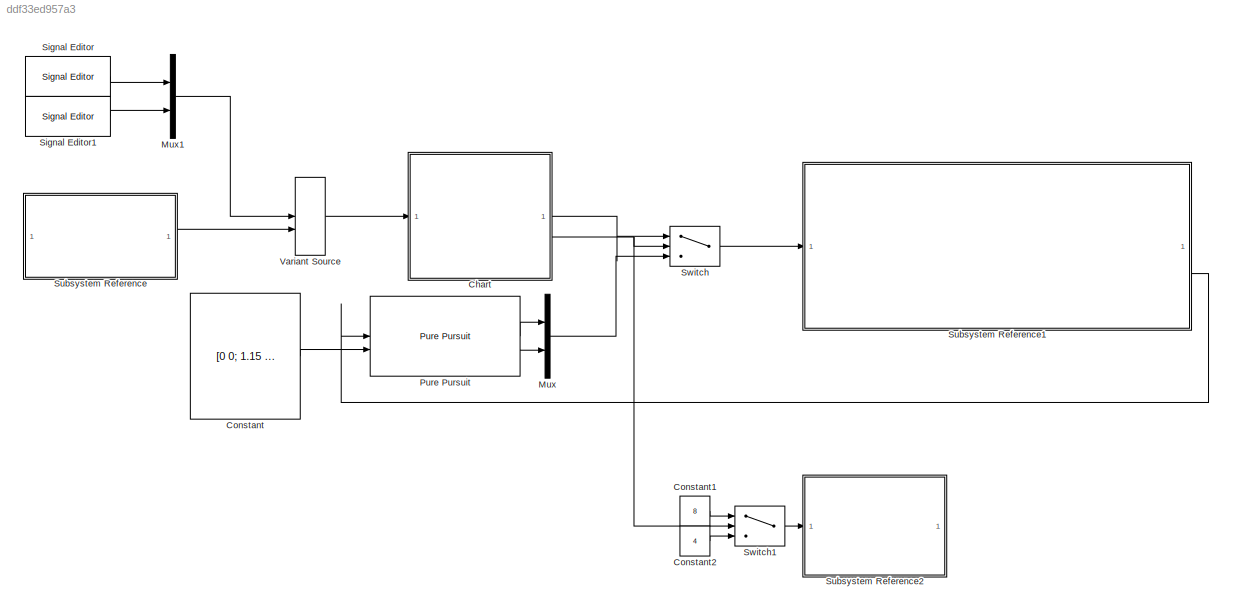
MODEL slx_ddf33ed957a3
KIND model
CONFIG AbsTol = auto
CONFIG EnableMultiTasking = on
CONFIG FixedStep = auto
CONFIG MaxStep = auto
CONFIG MinStep = auto
CONFIG RelTol = 1e-3
CONFIG SampleTimeConstraint = Unconstrained
CONFIG SolverName = FixedStepAuto
CONFIG StartTime = 0.0
CONFIG StopTime = 50
WORKSPACE source: mxarray member
WORKSPACE d = 0.15
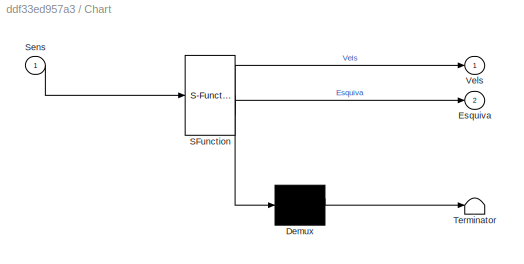
BLOCK [SubSystem] Chart
  ErrorFcn = Stateflow.Translate.translate
  PermitHierarchicalResolution = ExplicitOnly
  SFBlockType = Chart
  TreatAsAtomicUnit = on
BLOCK [Demux] Chart/ Demux 
  Outputs = 1
BLOCK [S-Function] Chart/ SFunction 
  EnableBusSupport = on
  FunctionName = sf_sfun
  PortCounts = [1 3]
  SFcnIsStateOwnerBlock = off
  SFunctionDeploymentMode = off
  Tag = Stateflow S-Function 3
BLOCK [Terminator] Chart/ Terminator 
BLOCK [Outport] Chart/Esquiva
  Port = 2
BLOCK [Inport] Chart/Sens
BLOCK [Outport] Chart/Vels
BLOCK [Constant] Constant
  Value = [0 0; 1.15 0; 1.15 -0.15; 0.36 0.8; 0.36 1.5; 1.9 1.5; 1.9 0; 2.607 -0.707]
BLOCK [Constant] Constant1
  Value = 8
BLOCK [Constant] Constant2
  Value = 4
BLOCK [Mux] Mux
  DisplayOption = bar
  Inputs = 2
BLOCK [Mux] Mux1
  DisplayOption = bar
  Inputs = 2
BLOCK [Reference] Pure Pursuit  REF=robotalgslib/Pure Pursuit
  LibrarySourceBlock = robotmobilelib/Pure Pursuit
  SourceBlock = robotalgslib/Pure Pursuit
  SourceType = nav.slalgs.internal.PurePursuit
BLOCK [Reference] Signal Editor  REF=SignalEditorBlockLib/Signal Editor
  LibrarySourceBlock = simulink/Sources/Signal Editor
  SourceBlock = SignalEditorBlockLib/Signal Editor
  SourceType = SignalEditor
  UserDataPersistent = on
BLOCK [Reference] Signal Editor1  REF=SignalEditorBlockLib/Signal Editor
  LibrarySourceBlock = simulink/Sources/Signal Editor
  SourceBlock = SignalEditorBlockLib/Signal Editor
  SourceType = SignalEditor
  UserDataPersistent = on
BLOCK [SubSystem] Subsystem Reference
  ReferencedSubsystem = Sub_Laser
BLOCK [SubSystem] Subsystem Reference1
  ReferencedSubsystem = PieroCalculos
BLOCK [SubSystem] Subsystem Reference2
  ReferencedSubsystem = Sub_Led
BLOCK [Switch] Switch
  Criteria = u2 > Threshold
  InputSameDT = off
  SaturateOnIntegerOverflow = off
BLOCK [Switch] Switch1
  Criteria = u2 > Threshold
  InputSameDT = off
  SaturateOnIntegerOverflow = off
BLOCK [VariantSource] Variant Source
  VariantControlMode = sim codegen switching
LINE Chart:1 -> Switch:1
NET Chart:2 -> Switch1:2, Switch:2
LINE Constant1:1 -> Switch1:1
LINE Constant2:1 -> Switch1:3
LINE Constant:1 -> Pure Pursuit:2
LINE Mux1:1 -> Variant Source:1
LINE Mux:1 -> Switch:3
LINE Pure Pursuit:1 -> Mux:1
LINE Pure Pursuit:2 -> Mux:2
LINE Signal Editor1:1 -> Mux1:2
LINE Signal Editor:1 -> Mux1:1
LINE Subsystem Reference1:2 -> Pure Pursuit:1
LINE Subsystem Reference:1 -> Variant Source:2
LINE Switch1:1 -> Subsystem Reference2:1
LINE Switch:1 -> Subsystem Reference1:1
LINE Variant Source:1 -> Chart:1
note: NET lines group one-source signal fan-out (src -> all destinations, sorted); 1:1 wires keep LINE
CHART Chart states=5 transitions=9
  STATE_LABEL 'Inicio\nentry:\nEsquiva=0;\nVels(1)=0;\nVels(2)=0;'
  STATE_LABEL 'SinObstaculos\nentry:\nEsquiva=0;\nVels(1)=0;\nVels(2)=0;'
  STATE_LABEL 'Obst_Izq\nentry:\nEsquiva=1;\nVels(1)=0.1;\nVels(2)=-pi/3;'
  STATE_LABEL 'Obst_Der\nentry:\nEsquiva=1;\nVels(1)=0.1;\nVels(2)=+pi/3;'
  STATE_LABEL 'Obst_Enfrente\nentry:\nEsquiva=1;\nVels(1)=0;\nVels(2)=+pi/4*sign(Sens(1)-Sens(2));'
CHART  states=0 transitions=0
